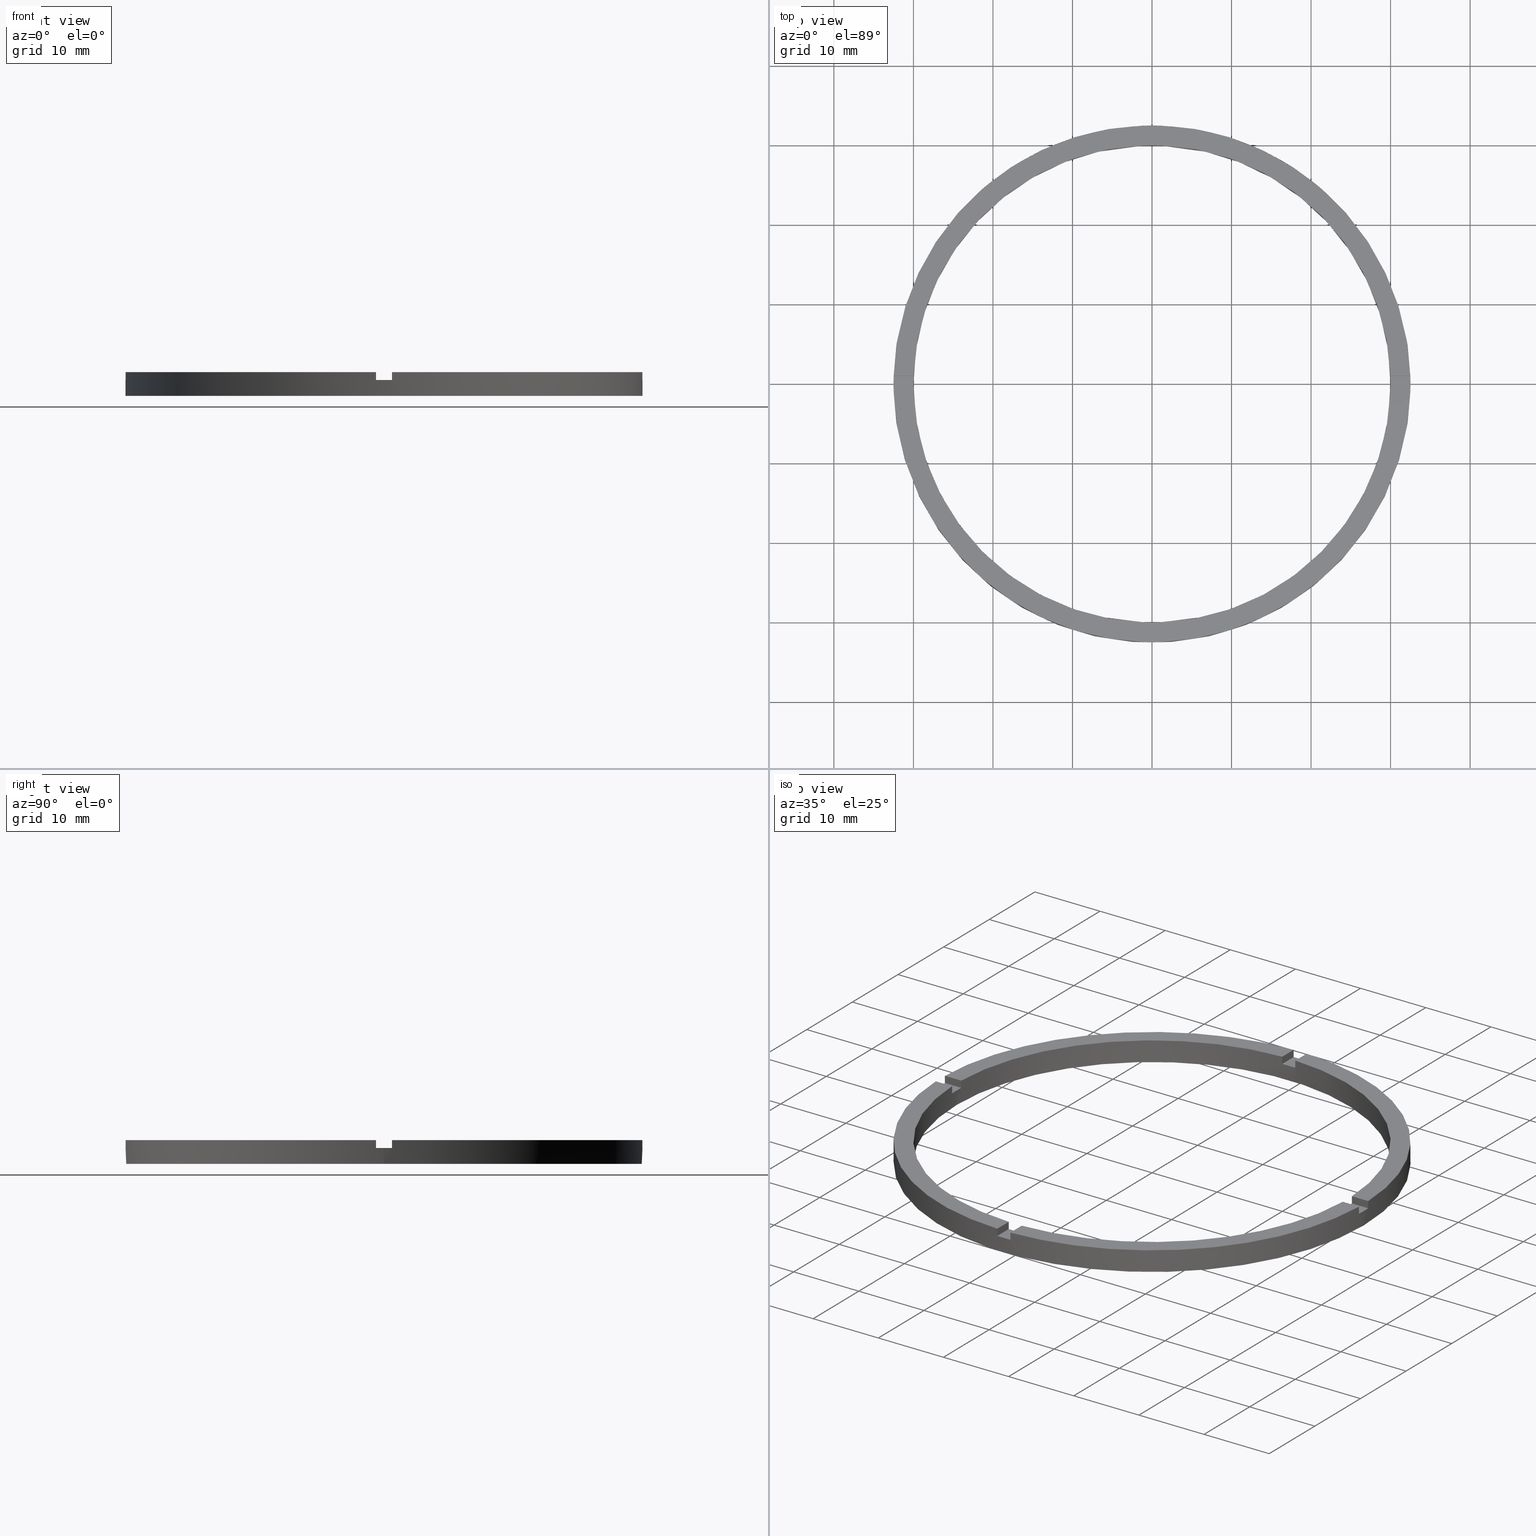
[diagram: canonical four-view strip — front | top / right | iso, engineering-drawing reading convention]
A machine part, canonical four-view strip (front | top / right | iso — engineering-drawing reading convention). The complete STEP part file that produces these views, byte-faithful:
ISO-10303-21;
HEADER;
FILE_DESCRIPTION (( 'STEP AP203' ),
    '1' );
FILE_NAME ('514134.step',
    '2024-12-26T02:40:47',
    ( 'MSI' ),
    ( '' ),
    'SwSTEP 2.0',
    'SolidWorks 2020',
    '' );
FILE_SCHEMA (( 'CONFIG_CONTROL_DESIGN' ));
ENDSEC;

DATA;
#1 = CYLINDRICAL_SURFACE ( 'NONE', #261, 32.50000000000000000 ) ;
#2 = APPROVAL ( #534, 'δָ��' ) ;
#3 = CIRCLE ( 'NONE', #516, 30.00000000000000000 ) ;
#4 = CARTESIAN_POINT ( 'NONE',  ( 0.9999999999999753530, 22.50000000000000000, 2.000000000000000000 ) ) ;
#5 = VECTOR ( 'NONE', #608, 1000.000000000000000 ) ;
#6 = LINE ( 'NONE', #214, #8 ) ;
#7 = APPLICATION_PROTOCOL_DEFINITION ( 'international standard', 'config_control_design', 1994, #714 ) ;
#8 = VECTOR ( 'NONE', #768, 1000.000000000000000 ) ;
#9 = CARTESIAN_POINT ( 'NONE',  ( 32.48461174156157938, 0.9999999999998414602, 3.000000000000000000 ) ) ;
#10 = EDGE_CURVE ( 'NONE', #573, #136, #247, .T. ) ;
#11 = AXIS2_PLACEMENT_3D ( 'NONE', #281, #398, #147 ) ;
#12 = VECTOR ( 'NONE', #582, 1000.000000000000000 ) ;
#13 = PLANE ( 'NONE',  #757 ) ;
#14 = VECTOR ( 'NONE', #225, 1000.000000000000000 ) ;
#15 = DIRECTION ( 'NONE',  ( 0.000000000000000000, 0.000000000000000000, 1.000000000000000000 ) ) ;
#16 = FACE_OUTER_BOUND ( 'NONE', #188, .T. ) ;
#17 = ORIENTED_EDGE ( 'NONE', *, *, #156, .F. ) ;
#18 = LINE ( 'NONE', #374, #316 ) ;
#19 = ORIENTED_EDGE ( 'NONE', *, *, #447, .T. ) ;
#20 = EDGE_CURVE ( 'NONE', #28, #174, #748, .T. ) ;
#21 = LINE ( 'NONE', #365, #528 ) ;
#22 = ORIENTED_EDGE ( 'NONE', *, *, #536, .F. ) ;
#23 = ORIENTED_EDGE ( 'NONE', *, *, #160, .F. ) ;
#24 = CARTESIAN_POINT ( 'NONE',  ( 0.000000000000000000, 0.000000000000000000, 2.000000000000000000 ) ) ;
#25 = LINE ( 'NONE', #517, #52 ) ;
#26 = CC_DESIGN_PERSON_AND_ORGANIZATION_ASSIGNMENT ( #29, #422, ( #594 ) ) ;
#27 = CARTESIAN_POINT ( 'NONE',  ( 0.000000000000000000, 0.000000000000000000, 3.000000000000000000 ) ) ;
#28 = VERTEX_POINT ( 'NONE', #503 ) ;
#29 = PERSON_AND_ORGANIZATION ( #102, #292 ) ;
#30 = DATE_AND_TIME ( #33, #553 ) ;
#31 = VERTEX_POINT ( 'NONE', #434 ) ;
#32 = CARTESIAN_POINT ( 'NONE',  ( 0.000000000000000000, 0.000000000000000000, 2.000000000000000000 ) ) ;
#33 = CALENDAR_DATE ( 2024, 26, 12 ) ;
#34 = VERTEX_POINT ( 'NONE', #257 ) ;
#35 = PERSON_AND_ORGANIZATION ( #102, #292 ) ;
#36 = ORIENTED_EDGE ( 'NONE', *, *, #359, .F. ) ;
#37 = LINE ( 'NONE', #634, #50 ) ;
#38 = VERTEX_POINT ( 'NONE', #614 ) ;
#39 = DIRECTION ( 'NONE',  ( -0.000000000000000000, -0.000000000000000000, -1.000000000000000000 ) ) ;
#40 = CARTESIAN_POINT ( 'NONE',  ( 32.50000000000000000, 3.980102097228898626E-15, 0.000000000000000000 ) ) ;
#41 = ORIENTED_EDGE ( 'NONE', *, *, #99, .F. ) ;
#42 = FACE_OUTER_BOUND ( 'NONE', #170, .T. ) ;
#43 = VECTOR ( 'NONE', #39, 1000.000000000000000 ) ;
#44 = VERTEX_POINT ( 'NONE', #675 ) ;
#45 = EDGE_CURVE ( 'NONE', #38, #174, #239, .T. ) ;
#46 = CIRCLE ( 'NONE', #106, 32.50000000000000000 ) ;
#47 = CARTESIAN_POINT ( 'NONE',  ( -1.000000000000024647, 22.50000000000000000, 3.000000000000000000 ) ) ;
#48 = DIRECTION ( 'NONE',  ( 0.000000000000000000, 0.000000000000000000, 1.000000000000000000 ) ) ;
#49 = CARTESIAN_POINT ( 'NONE',  ( 30.00000000000000000, 3.673940397442059178E-15, 0.000000000000000000 ) ) ;
#50 = VECTOR ( 'NONE', #579, 1000.000000000000000 ) ;
#51 = LINE ( 'NONE', #522, #43 ) ;
#52 = VECTOR ( 'NONE', #633, 1000.000000000000000 ) ;
#53 = CYLINDRICAL_SURFACE ( 'NONE', #366, 30.00000000000000000 ) ;
#54 = ORIENTED_EDGE ( 'NONE', *, *, #487, .T. ) ;
#55 = ADVANCED_FACE ( 'NONE', ( #506 ), #13, .F. ) ;
#56 = LINE ( 'NONE', #666, #324 ) ;
#57 = EDGE_LOOP ( 'NONE', ( #462, #406, #256, #481 ) ) ;
#58 = CARTESIAN_POINT ( 'NONE',  ( 0.000000000000000000, 0.000000000000000000, 3.000000000000000000 ) ) ;
#59 = DATE_AND_TIME ( #320, #561 ) ;
#60 = LINE ( 'NONE', #158, #570 ) ;
#61 = ORIENTED_EDGE ( 'NONE', *, *, #350, .T. ) ;
#62 = ORIENTED_EDGE ( 'NONE', *, *, #682, .T. ) ;
#63 = CARTESIAN_POINT ( 'NONE',  ( 0.000000000000000000, 0.000000000000000000, 0.000000000000000000 ) ) ;
#64 = EDGE_CURVE ( 'NONE', #28, #303, #762, .T. ) ;
#65 = EDGE_CURVE ( 'NONE', #573, #716, #259, .T. ) ;
#66 = DIRECTION ( 'NONE',  ( 1.000000000000000000, 0.000000000000000000, 0.000000000000000000 ) ) ;
#67 = DIRECTION ( 'NONE',  ( 1.951563910473908228E-16, -1.000000000000000000, 0.000000000000000000 ) ) ;
#68 = PERSON_AND_ORGANIZATION_ROLE ( 'creator' ) ;
#69 = DATE_AND_TIME ( #596, #75 ) ;
#70 = DATE_AND_TIME ( #339, #578 ) ;
#71 = PRODUCT_DEFINITION_FORMATION_WITH_SPECIFIED_SOURCE ( '�κ�', '', #594, .NOT_KNOWN. ) ;
#72 = DIRECTION ( 'NONE',  ( 1.000000000000000000, 0.000000000000000000, 0.000000000000000000 ) ) ;
#73 = COORDINATED_UNIVERSAL_TIME_OFFSET ( 8, 0, .AHEAD. ) ;
#74 = DIRECTION ( 'NONE',  ( 1.000000000000000000, 0.000000000000000000, 0.000000000000000000 ) ) ;
#75 = LOCAL_TIME ( 10, 40, 47.00000000000000000, #328 ) ;
#76 = AXIS2_PLACEMENT_3D ( 'NONE', #100, #333, #513 ) ;
#77 = APPROVAL_PERSON_ORGANIZATION ( #587, #577, #427 ) ;
#78 = PERSON_AND_ORGANIZATION ( #102, #292 ) ;
#79 = CARTESIAN_POINT ( 'NONE',  ( -1.000000000000162537, -22.50000000000018119, 2.000000000000000000 ) ) ;
#80 = AXIS2_PLACEMENT_3D ( 'NONE', #781, #360, #238 ) ;
#81 = PERSON_AND_ORGANIZATION ( #102, #292 ) ;
#82 = CARTESIAN_POINT ( 'NONE',  ( -1.000000000000024647, 32.48461174156157227, 3.000000000000000000 ) ) ;
#83 = VECTOR ( 'NONE', #346, 1000.000000000000000 ) ;
#84 = LINE ( 'NONE', #433, #352 ) ;
#85 = DIRECTION ( 'NONE',  ( 1.000000000000000000, 0.000000000000000000, 0.000000000000000000 ) ) ;
#86 = ADVANCED_FACE ( 'NONE', ( #772, #249 ), #178, .F. ) ;
#87 = FACE_OUTER_BOUND ( 'NONE', #57, .T. ) ;
#88 = EDGE_CURVE ( 'NONE', #456, #34, #766, .T. ) ;
#89 = FACE_OUTER_BOUND ( 'NONE', #564, .T. ) ;
#90 = VECTOR ( 'NONE', #435, 1000.000000000000000 ) ;
#91 = LINE ( 'NONE', #638, #357 ) ;
#92 = CYLINDRICAL_SURFACE ( 'NONE', #453, 32.50000000000000000 ) ;
#93 = LINE ( 'NONE', #508, #599 ) ;
#94 = CIRCLE ( 'NONE', #334, 30.00000000000000000 ) ;
#95 = CARTESIAN_POINT ( 'NONE',  ( -1.000000000000024647, 29.98332870112989568, 3.000000000000000000 ) ) ;
#96 = ADVANCED_FACE ( 'NONE', ( #255 ), #330, .F. ) ;
#97 = DIRECTION ( 'NONE',  ( -1.000000000000000000, 0.000000000000000000, 0.000000000000000000 ) ) ;
#98 = DIRECTION ( 'NONE',  ( 0.000000000000000000, 0.000000000000000000, 1.000000000000000000 ) ) ;
#99 = EDGE_CURVE ( 'NONE', #649, #697, #775, .T. ) ;
#100 = CARTESIAN_POINT ( 'NONE',  ( 0.000000000000000000, 0.000000000000000000, 3.000000000000000000 ) ) ;
#101 = CARTESIAN_POINT ( 'NONE',  ( 0.9999999999998384625, -29.98332870112990278, 2.000000000000000000 ) ) ;
#102 = PERSON ( 'δָ��', 'δָ��', 'δָ��', ('δָ��'), ('δָ��'), ('δָ��') ) ;
#103 = DIRECTION ( 'NONE',  ( 0.000000000000000000, 0.000000000000000000, 1.000000000000000000 ) ) ;
#104 = DIRECTION ( 'NONE',  ( 1.000000000000000000, 0.000000000000000000, 0.000000000000000000 ) ) ;
#105 = CARTESIAN_POINT ( 'NONE',  ( 32.48461174156157938, 0.9999999999998414602, 2.000000000000000000 ) ) ;
#106 = AXIS2_PLACEMENT_3D ( 'NONE', #153, #108, #411 ) ;
#107 = DIRECTION ( 'NONE',  ( -0.000000000000000000, -0.000000000000000000, -1.000000000000000000 ) ) ;
#108 = DIRECTION ( 'NONE',  ( -0.000000000000000000, 0.000000000000000000, 1.000000000000000000 ) ) ;
#109 = CARTESIAN_POINT ( 'NONE',  ( 30.00000000000000000, 3.673940397442059178E-15, 3.000000000000000000 ) ) ;
#110 = ADVANCED_BREP_SHAPE_REPRESENTATION ( '514134', ( #769, #409 ), #586 ) ;
#111 = CC_DESIGN_PERSON_AND_ORGANIZATION_ASSIGNMENT ( #81, #486, ( #133 ) ) ;
#112 = CARTESIAN_POINT ( 'NONE',  ( 0.000000000000000000, 0.000000000000000000, 3.000000000000000000 ) ) ;
#113 = DIRECTION ( 'NONE',  ( 6.505213034913022906E-17, -1.000000000000000000, 0.000000000000000000 ) ) ;
#114 = EDGE_CURVE ( 'NONE', #705, #479, #783, .T. ) ;
#115 = DIRECTION ( 'NONE',  ( 1.000000000000000000, 0.000000000000000000, 0.000000000000000000 ) ) ;
#116 = LINE ( 'NONE', #223, #632 ) ;
#117 = APPROVAL_STATUS ( 'not_yet_approved' ) ;
#118 = PRODUCT_DEFINITION_SHAPE ( 'NONE', 'NONE',  #389 ) ;
#119 = VECTOR ( 'NONE', #593, 1000.000000000000000 ) ;
#120 = AXIS2_PLACEMENT_3D ( 'NONE', #702, #113, #164 ) ;
#121 = CARTESIAN_POINT ( 'NONE',  ( 0.000000000000000000, 0.000000000000000000, 3.000000000000000000 ) ) ;
#122 = DIRECTION ( 'NONE',  ( 0.000000000000000000, 0.000000000000000000, 1.000000000000000000 ) ) ;
#123 = ORIENTED_EDGE ( 'NONE', *, *, #597, .F. ) ;
#124 = LINE ( 'NONE', #642, #735 ) ;
#125 = ORIENTED_EDGE ( 'NONE', *, *, #192, .T. ) ;
#126 = DIRECTION ( 'NONE',  ( 0.000000000000000000, 0.000000000000000000, 1.000000000000000000 ) ) ;
#127 = ORIENTED_EDGE ( 'NONE', *, *, #384, .F. ) ;
#128 = EDGE_CURVE ( 'NONE', #496, #229, #266, .T. ) ;
#129 = DIRECTION ( 'NONE',  ( -0.000000000000000000, -0.000000000000000000, -1.000000000000000000 ) ) ;
#130 = CARTESIAN_POINT ( 'NONE',  ( 0.000000000000000000, 0.000000000000000000, 2.000000000000000000 ) ) ;
#131 = PLANE ( 'NONE',  #519 ) ;
#132 = ADVANCED_FACE ( 'NONE', ( #260 ), #1, .T. ) ;
#133 = SECURITY_CLASSIFICATION ( '', '', #719 ) ;
#134 = DIRECTION ( 'NONE',  ( 0.000000000000000000, 0.000000000000000000, 1.000000000000000000 ) ) ;
#135 = VERTEX_POINT ( 'NONE', #167 ) ;
#136 = VERTEX_POINT ( 'NONE', #305 ) ;
#137 = CARTESIAN_POINT ( 'NONE',  ( -22.50000000000018474, 0.9999999999999759082, 3.000000000000000000 ) ) ;
#138 = ORIENTED_EDGE ( 'NONE', *, *, #682, .F. ) ;
#139 = ORIENTED_EDGE ( 'NONE', *, *, #302, .T. ) ;
#140 = AXIS2_PLACEMENT_3D ( 'NONE', #452, #684, #631 ) ;
#141 = ORIENTED_EDGE ( 'NONE', *, *, #88, .T. ) ;
#142 = CARTESIAN_POINT ( 'NONE',  ( -1.000000000000024647, 22.50000000000000000, 2.000000000000000000 ) ) ;
#143 = CARTESIAN_POINT ( 'NONE',  ( -32.50000000000000000, 0.000000000000000000, 0.000000000000000000 ) ) ;
#144 = EDGE_CURVE ( 'NONE', #234, #312, #265, .T. ) ;
#145 = EDGE_CURVE ( 'NONE', #494, #325, #3, .T. ) ;
#146 = DIRECTION ( 'NONE',  ( 0.000000000000000000, 0.000000000000000000, 1.000000000000000000 ) ) ;
#147 = DIRECTION ( 'NONE',  ( 1.000000000000000000, 0.000000000000000000, 0.000000000000000000 ) ) ;
#148 = DIRECTION ( 'NONE',  ( 0.000000000000000000, 0.000000000000000000, 1.000000000000000000 ) ) ;
#149 = AXIS2_PLACEMENT_3D ( 'NONE', #166, #625, #155 ) ;
#150 = CARTESIAN_POINT ( 'NONE',  ( 0.9999999999999753530, 29.98332870112989923, 2.000000000000000000 ) ) ;
#151 = EDGE_CURVE ( 'NONE', #31, #670, #527, .T. ) ;
#152 = CARTESIAN_POINT ( 'NONE',  ( 0.000000000000000000, 0.000000000000000000, 3.000000000000000000 ) ) ;
#153 = CARTESIAN_POINT ( 'NONE',  ( 0.000000000000000000, 0.000000000000000000, 2.000000000000000000 ) ) ;
#154 = AXIS2_PLACEMENT_3D ( 'NONE', #475, #463, #767 ) ;
#155 = DIRECTION ( 'NONE',  ( 1.000000000000000000, 0.000000000000000000, 0.000000000000000000 ) ) ;
#156 = EDGE_CURVE ( 'NONE', #179, #245, #544, .T. ) ;
#157 = ORIENTED_EDGE ( 'NONE', *, *, #384, .T. ) ;
#158 = CARTESIAN_POINT ( 'NONE',  ( 0.9999999999999753530, 22.50000000000000000, 3.000000000000000000 ) ) ;
#159 = CARTESIAN_POINT ( 'NONE',  ( 29.98332870112990278, 0.9999999999998412381, 3.000000000000000000 ) ) ;
#160 = EDGE_CURVE ( 'NONE', #456, #752, #21, .T. ) ;
#161 = DIRECTION ( 'NONE',  ( -1.301042606982605074E-16, 1.000000000000000000, -0.000000000000000000 ) ) ;
#162 = VERTEX_POINT ( 'NONE', #648 ) ;
#163 = AXIS2_PLACEMENT_3D ( 'NONE', #591, #546, #66 ) ;
#164 = DIRECTION ( 'NONE',  ( 1.000000000000000000, 6.505213034913022906E-17, 0.000000000000000000 ) ) ;
#165 = ORIENTED_EDGE ( 'NONE', *, *, #381, .F. ) ;
#166 = CARTESIAN_POINT ( 'NONE',  ( 0.000000000000000000, 0.000000000000000000, 2.000000000000000000 ) ) ;
#167 = CARTESIAN_POINT ( 'NONE',  ( -29.98332870112989568, -1.000000000000025535, 3.000000000000000000 ) ) ;
#168 = CARTESIAN_POINT ( 'NONE',  ( 0.000000000000000000, 0.000000000000000000, 0.000000000000000000 ) ) ;
#169 = CARTESIAN_POINT ( 'NONE',  ( 0.000000000000000000, 0.000000000000000000, 0.000000000000000000 ) ) ;
#170 = EDGE_LOOP ( 'NONE', ( #672, #646, #394, #724, #123, #185 ) ) ;
#171 = PLANE ( 'NONE',  #80 ) ;
#172 = DIRECTION ( 'NONE',  ( -1.000000000000000000, 0.000000000000000000, 0.000000000000000000 ) ) ;
#173 = CARTESIAN_POINT ( 'NONE',  ( -1.000000000000024647, 29.98332870112989568, 3.000000000000000000 ) ) ;
#174 = VERTEX_POINT ( 'NONE', #105 ) ;
#175 = EDGE_LOOP ( 'NONE', ( #717, #216, #407, #470 ) ) ;
#176 = DIRECTION ( 'NONE',  ( 0.000000000000000000, 0.000000000000000000, 1.000000000000000000 ) ) ;
#177 = AXIS2_PLACEMENT_3D ( 'NONE', #580, #655, #418 ) ;
#178 = PLANE ( 'NONE',  #356 ) ;
#179 = VERTEX_POINT ( 'NONE', #143 ) ;
#180 = ORIENTED_EDGE ( 'NONE', *, *, #296, .T. ) ;
#181 = ORIENTED_EDGE ( 'NONE', *, *, #745, .T. ) ;
#182 = ORIENTED_EDGE ( 'NONE', *, *, #742, .F. ) ;
#183 = DIRECTION ( 'NONE',  ( 1.000000000000000000, 0.000000000000000000, 0.000000000000000000 ) ) ;
#184 = EDGE_CURVE ( 'NONE', #752, #455, #537, .T. ) ;
#185 = ORIENTED_EDGE ( 'NONE', *, *, #581, .T. ) ;
#186 = ORIENTED_EDGE ( 'NONE', *, *, #416, .T. ) ;
#187 = DIRECTION ( 'NONE',  ( 1.000000000000000000, 0.000000000000000000, 0.000000000000000000 ) ) ;
#188 = EDGE_LOOP ( 'NONE', ( #139, #448, #193, #198 ) ) ;
#189 = ORIENTED_EDGE ( 'NONE', *, *, #652, .F. ) ;
#190 = DIRECTION ( 'NONE',  ( 0.000000000000000000, -0.000000000000000000, 1.000000000000000000 ) ) ;
#191 = ADVANCED_FACE ( 'NONE', ( #524 ), #701, .T. ) ;
#192 = EDGE_CURVE ( 'NONE', #31, #135, #6, .T. ) ;
#193 = ORIENTED_EDGE ( 'NONE', *, *, #624, .F. ) ;
#194 = ORIENTED_EDGE ( 'NONE', *, *, #192, .F. ) ;
#195 = EDGE_LOOP ( 'NONE', ( #507, #319, #665, #493, #197, #138, #395, #200, #203, #182, #667, #476 ) ) ;
#196 = AXIS2_PLACEMENT_3D ( 'NONE', #32, #98, #689 ) ;
#197 = ORIENTED_EDGE ( 'NONE', *, *, #707, .T. ) ;
#198 = ORIENTED_EDGE ( 'NONE', *, *, #20, .F. ) ;
#199 = AXIS2_PLACEMENT_3D ( 'NONE', #4, #315, #375 ) ;
#200 = ORIENTED_EDGE ( 'NONE', *, *, #487, .F. ) ;
#201 = CARTESIAN_POINT ( 'NONE',  ( -32.48461174156157227, 0.9999999999999740208, 3.000000000000000000 ) ) ;
#202 = DIRECTION ( 'NONE',  ( 1.000000000000000000, 0.000000000000000000, 0.000000000000000000 ) ) ;
#203 = ORIENTED_EDGE ( 'NONE', *, *, #151, .T. ) ;
#204 = ORIENTED_EDGE ( 'NONE', *, *, #160, .T. ) ;
#205 = ORIENTED_EDGE ( 'NONE', *, *, #64, .T. ) ;
#206 = DIRECTION ( 'NONE',  ( 1.000000000000000000, 0.000000000000000000, -0.000000000000000000 ) ) ;
#207 = VERTEX_POINT ( 'NONE', #405 ) ;
#208 = ORIENTED_EDGE ( 'NONE', *, *, #373, .F. ) ;
#209 = EDGE_CURVE ( 'NONE', #245, #179, #268, .T. ) ;
#210 = ORIENTED_EDGE ( 'NONE', *, *, #512, .F. ) ;
#211 = ORIENTED_EDGE ( 'NONE', *, *, #184, .T. ) ;
#212 = ORIENTED_EDGE ( 'NONE', *, *, #615, .F. ) ;
#213 = CARTESIAN_POINT ( 'NONE',  ( 29.98332870112989212, -1.000000000000158762, 3.000000000000000000 ) ) ;
#214 = CARTESIAN_POINT ( 'NONE',  ( -22.50000000000018474, -1.000000000000023981, 3.000000000000000000 ) ) ;
#215 = PLANE ( 'NONE',  #306 ) ;
#216 = ORIENTED_EDGE ( 'NONE', *, *, #676, .T. ) ;
#217 = DIRECTION ( 'NONE',  ( -0.000000000000000000, -0.000000000000000000, -1.000000000000000000 ) ) ;
#218 = ORIENTED_EDGE ( 'NONE', *, *, #381, .T. ) ;
#219 = LINE ( 'NONE', #471, #491 ) ;
#220 = ORIENTED_EDGE ( 'NONE', *, *, #221, .F. ) ;
#221 = EDGE_CURVE ( 'NONE', #572, #227, #532, .T. ) ;
#222 = CARTESIAN_POINT ( 'NONE',  ( 0.000000000000000000, 0.000000000000000000, 3.000000000000000000 ) ) ;
#223 = CARTESIAN_POINT ( 'NONE',  ( -22.50000000000018474, 0.9999999999999759082, 2.000000000000000000 ) ) ;
#224 = EDGE_CURVE ( 'NONE', #44, #649, #116, .T. ) ;
#225 = DIRECTION ( 'NONE',  ( -1.301042606982605074E-16, 1.000000000000000000, -0.000000000000000000 ) ) ;
#226 = VECTOR ( 'NONE', #778, 1000.000000000000000 ) ;
#227 = VERTEX_POINT ( 'NONE', #49 ) ;
#228 = ORIENTED_EDGE ( 'NONE', *, *, #438, .F. ) ;
#229 = VERTEX_POINT ( 'NONE', #399 ) ;
#230 = AXIS2_PLACEMENT_3D ( 'NONE', #429, #613, #721 ) ;
#231 = DIRECTION ( 'NONE',  ( -0.000000000000000000, -0.000000000000000000, -1.000000000000000000 ) ) ;
#232 = ORIENTED_EDGE ( 'NONE', *, *, #45, .F. ) ;
#233 = DIRECTION ( 'NONE',  ( 0.000000000000000000, 0.000000000000000000, 1.000000000000000000 ) ) ;
#234 = VERTEX_POINT ( 'NONE', #523 ) ;
#235 = EDGE_CURVE ( 'NONE', #314, #162, #636, .T. ) ;
#236 = MECHANICAL_CONTEXT ( 'NONE', #714, 'mechanical' ) ;
#237 = ORIENTED_EDGE ( 'NONE', *, *, #221, .T. ) ;
#238 = DIRECTION ( 'NONE',  ( 1.000000000000000000, 0.000000000000000000, -0.000000000000000000 ) ) ;
#239 = CIRCLE ( 'NONE', #321, 32.50000000000000000 ) ;
#240 = DIRECTION ( 'NONE',  ( 0.000000000000000000, 0.000000000000000000, 1.000000000000000000 ) ) ;
#241 = AXIS2_PLACEMENT_3D ( 'NONE', #518, #693, #451 ) ;
#242 = ORIENTED_EDGE ( 'NONE', *, *, #20, .T. ) ;
#243 = CIRCLE ( 'NONE', #529, 32.50000000000000000 ) ;
#244 = APPLICATION_PROTOCOL_DEFINITION ( 'international standard', 'config_control_design', 1994, #780 ) ;
#245 = VERTEX_POINT ( 'NONE', #40 ) ;
#246 = LINE ( 'NONE', #776, #763 ) ;
#247 = CIRCLE ( 'NONE', #687, 30.00000000000000000 ) ;
#248 = CARTESIAN_POINT ( 'NONE',  ( 0.9999999999999753530, 29.98332870112989923, 3.000000000000000000 ) ) ;
#249 = FACE_BOUND ( 'NONE', #651, .T. ) ;
#250 = APPROVAL_STATUS ( 'not_yet_approved' ) ;
#251 = CC_DESIGN_DATE_AND_TIME_ASSIGNMENT ( #59, #669, ( #389 ) ) ;
#252 = DIRECTION ( 'NONE',  ( 1.000000000000000000, 0.000000000000000000, 0.000000000000000000 ) ) ;
#253 = EDGE_CURVE ( 'NONE', #314, #480, #390, .T. ) ;
#254 = DIRECTION ( 'NONE',  ( 1.000000000000000000, 0.000000000000000000, 0.000000000000000000 ) ) ;
#255 = FACE_OUTER_BOUND ( 'NONE', #747, .T. ) ;
#256 = ORIENTED_EDGE ( 'NONE', *, *, #765, .F. ) ;
#257 = CARTESIAN_POINT ( 'NONE',  ( -1.000000000000161426, -32.48461174156157227, 2.000000000000000000 ) ) ;
#258 = VECTOR ( 'NONE', #743, 1000.000000000000000 ) ;
#259 = LINE ( 'NONE', #173, #226 ) ;
#260 = FACE_OUTER_BOUND ( 'NONE', #195, .T. ) ;
#261 = AXIS2_PLACEMENT_3D ( 'NONE', #121, #231, #172 ) ;
#262 = DIRECTION ( 'NONE',  ( 1.301042606982605074E-16, -1.000000000000000000, 0.000000000000000000 ) ) ;
#263 = VECTOR ( 'NONE', #618, 1000.000000000000000 ) ;
#264 = UNCERTAINTY_MEASURE_WITH_UNIT (LENGTH_MEASURE( 1.000000000000000082E-05 ), #297, 'distance_accuracy_value', 'NONE');
#265 = CIRCLE ( 'NONE', #589, 30.00000000000000000 ) ;
#266 = LINE ( 'NONE', #559, #263 ) ;
#267 = CARTESIAN_POINT ( 'NONE',  ( -30.00000000000000000, 0.000000000000000000, 2.000000000000000000 ) ) ;
#268 = CIRCLE ( 'NONE', #678, 32.50000000000000000 ) ;
#269 = EDGE_CURVE ( 'NONE', #44, #494, #385, .T. ) ;
#270 = PLANE ( 'NONE',  #241 ) ;
#271 = DIRECTION ( 'NONE',  ( -0.000000000000000000, -0.000000000000000000, -1.000000000000000000 ) ) ;
#272 = ADVANCED_FACE ( 'NONE', ( #387 ), #531, .T. ) ;
#273 = LINE ( 'NONE', #47, #12 ) ;
#274 = PLANE ( 'NONE',  #482 ) ;
#275 = DIRECTION ( 'NONE',  ( 0.000000000000000000, 0.000000000000000000, 1.000000000000000000 ) ) ;
#276 = AXIS2_PLACEMENT_3D ( 'NONE', #592, #48, #104 ) ;
#277 = CYLINDRICAL_SURFACE ( 'NONE', #525, 30.00000000000000000 ) ;
#278 = ORIENTED_EDGE ( 'NONE', *, *, #144, .T. ) ;
#279 = CARTESIAN_POINT ( 'NONE',  ( -32.50000000000000000, 0.000000000000000000, 3.000000000000000000 ) ) ;
#280 = CARTESIAN_POINT ( 'NONE',  ( 22.49999999999999645, -1.000000000000159206, 3.000000000000000000 ) ) ;
#281 = CARTESIAN_POINT ( 'NONE',  ( 0.000000000000000000, 0.000000000000000000, 2.000000000000000000 ) ) ;
#282 = VERTEX_POINT ( 'NONE', #635 ) ;
#283 = CARTESIAN_POINT ( 'NONE',  ( -1.000000000000162537, -22.50000000000018119, 2.000000000000000000 ) ) ;
#284 = LINE ( 'NONE', #280, #557 ) ;
#285 = ORIENTED_EDGE ( 'NONE', *, *, #329, .F. ) ;
#286 = EDGE_LOOP ( 'NONE', ( #754, #228, #194, #54 ) ) ;
#287 = FACE_OUTER_BOUND ( 'NONE', #425, .T. ) ;
#288 = ORIENTED_EDGE ( 'NONE', *, *, #114, .F. ) ;
#289 = ORIENTED_EDGE ( 'NONE', *, *, #619, .T. ) ;
#290 = APPROVAL_PERSON_ORGANIZATION ( #35, #2, #495 ) ;
#291 = PERSON_AND_ORGANIZATION ( #102, #292 ) ;
#292 = ORGANIZATION ( 'δָ��', 'δָ��', '' ) ;
#293 = DIRECTION ( 'NONE',  ( 0.000000000000000000, 0.000000000000000000, 1.000000000000000000 ) ) ;
#294 = VECTOR ( 'NONE', #640, 1000.000000000000000 ) ;
#295 = ORIENTED_EDGE ( 'NONE', *, *, #253, .F. ) ;
#296 = EDGE_CURVE ( 'NONE', #326, #312, #124, .T. ) ;
#297 =( LENGTH_UNIT ( ) NAMED_UNIT ( * ) SI_UNIT ( .MILLI., .METRE. ) );
#298 = COORDINATED_UNIVERSAL_TIME_OFFSET ( 8, 0, .AHEAD. ) ;
#299 = ORIENTED_EDGE ( 'NONE', *, *, #253, .T. ) ;
#300 = ORIENTED_EDGE ( 'NONE', *, *, #114, .T. ) ;
#301 = COORDINATED_UNIVERSAL_TIME_OFFSET ( 8, 0, .AHEAD. ) ;
#302 = EDGE_CURVE ( 'NONE', #28, #314, #492, .T. ) ;
#303 = VERTEX_POINT ( 'NONE', #472 ) ;
#304 = DIRECTION ( 'NONE',  ( -0.000000000000000000, -0.000000000000000000, -1.000000000000000000 ) ) ;
#305 = CARTESIAN_POINT ( 'NONE',  ( -29.98332870112989923, 0.9999999999999744649, 3.000000000000000000 ) ) ;
#306 = AXIS2_PLACEMENT_3D ( 'NONE', #283, #730, #262 ) ;
#307 = ORIENTED_EDGE ( 'NONE', *, *, #416, .F. ) ;
#308 = CIRCLE ( 'NONE', #423, 32.50000000000000000 ) ;
#309 = ORIENTED_EDGE ( 'NONE', *, *, #65, .F. ) ;
#310 = PERSON_AND_ORGANIZATION_ROLE ( 'design_supplier' ) ;
#311 = LINE ( 'NONE', #457, #294 ) ;
#312 = VERTEX_POINT ( 'NONE', #213 ) ;
#313 = FACE_OUTER_BOUND ( 'NONE', #412, .T. ) ;
#314 = VERTEX_POINT ( 'NONE', #658 ) ;
#315 = DIRECTION ( 'NONE',  ( 1.000000000000000000, -0.000000000000000000, 0.000000000000000000 ) ) ;
#316 = VECTOR ( 'NONE', #161, 1000.000000000000000 ) ;
#317 = DIRECTION ( 'NONE',  ( 1.000000000000000000, 0.000000000000000000, 0.000000000000000000 ) ) ;
#318 = DIRECTION ( 'NONE',  ( 1.000000000000000000, 0.000000000000000000, -0.000000000000000000 ) ) ;
#319 = ORIENTED_EDGE ( 'NONE', *, *, #715, .F. ) ;
#320 = CALENDAR_DATE ( 2024, 26, 12 ) ;
#321 = AXIS2_PLACEMENT_3D ( 'NONE', #380, #706, #115 ) ;
#322 = VECTOR ( 'NONE', #647, 1000.000000000000000 ) ;
#323 = ORIENTED_EDGE ( 'NONE', *, *, #474, .F. ) ;
#324 = VECTOR ( 'NONE', #217, 1000.000000000000000 ) ;
#325 = VERTEX_POINT ( 'NONE', #758 ) ;
#326 = VERTEX_POINT ( 'NONE', #410 ) ;
#327 = CARTESIAN_POINT ( 'NONE',  ( 0.000000000000000000, 0.000000000000000000, 0.000000000000000000 ) ) ;
#328 = COORDINATED_UNIVERSAL_TIME_OFFSET ( 8, 0, .AHEAD. ) ;
#329 = EDGE_CURVE ( 'NONE', #670, #325, #219, .T. ) ;
#330 = PLANE ( 'NONE',  #547 ) ;
#331 = CARTESIAN_POINT ( 'NONE',  ( 0.9999999999999753530, 32.48461174156157227, 3.000000000000000000 ) ) ;
#332 = CC_DESIGN_APPROVAL ( #2, ( #389 ) ) ;
#333 = DIRECTION ( 'NONE',  ( 0.000000000000000000, 0.000000000000000000, 1.000000000000000000 ) ) ;
#334 = AXIS2_PLACEMENT_3D ( 'NONE', #627, #15, #254 ) ;
#335 = ADVANCED_FACE ( 'NONE', ( #733 ), #53, .F. ) ;
#336 = PERSON_AND_ORGANIZATION ( #102, #292 ) ;
#337 = SHAPE_DEFINITION_REPRESENTATION ( #118, #110 ) ;
#338 = PLANE ( 'NONE',  #567 ) ;
#339 = CALENDAR_DATE ( 2024, 26, 12 ) ;
#340 = CALENDAR_DATE ( 2024, 26, 12 ) ;
#341 = APPROVAL_DATE_TIME ( #70, #577 ) ;
#342 = APPROVAL_DATE_TIME ( #69, #468 ) ;
#343 = DIRECTION ( 'NONE',  ( 0.000000000000000000, 0.000000000000000000, 1.000000000000000000 ) ) ;
#344 = PERSON_AND_ORGANIZATION ( #102, #292 ) ;
#345 = DATE_AND_TIME ( #340, #585 ) ;
#346 = DIRECTION ( 'NONE',  ( -0.000000000000000000, -1.000000000000000000, -0.000000000000000000 ) ) ;
#347 = CARTESIAN_POINT ( 'NONE',  ( 0.9999999999999753530, 32.48461174156157227, 2.000000000000000000 ) ) ;
#348 = CIRCLE ( 'NONE', #460, 30.00000000000000000 ) ;
#349 = CIRCLE ( 'NONE', #773, 32.50000000000000000 ) ;
#350 = EDGE_CURVE ( 'NONE', #480, #303, #60, .T. ) ;
#351 = LINE ( 'NONE', #82, #600 ) ;
#352 = VECTOR ( 'NONE', #498, 1000.000000000000000 ) ;
#353 = CARTESIAN_POINT ( 'NONE',  ( -22.50000000000018474, 0.9999999999999759082, 2.000000000000000000 ) ) ;
#354 = EDGE_CURVE ( 'NONE', #483, #179, #571, .T. ) ;
#355 = LINE ( 'NONE', #501, #606 ) ;
#356 = AXIS2_PLACEMENT_3D ( 'NONE', #168, #240, #318 ) ;
#357 = VECTOR ( 'NONE', #304, 1000.000000000000000 ) ;
#358 = FACE_OUTER_BOUND ( 'NONE', #644, .T. ) ;
#359 = EDGE_CURVE ( 'NONE', #135, #325, #56, .T. ) ;
#360 = DIRECTION ( 'NONE',  ( 0.000000000000000000, 0.000000000000000000, 1.000000000000000000 ) ) ;
#361 = CARTESIAN_POINT ( 'NONE',  ( 0.9999999999999753530, 29.98332870112989923, 3.000000000000000000 ) ) ;
#362 = CARTESIAN_POINT ( 'NONE',  ( 0.000000000000000000, 0.000000000000000000, 3.000000000000000000 ) ) ;
#363 = CIRCLE ( 'NONE', #388, 30.00000000000000000 ) ;
#364 = ADVANCED_FACE ( 'NONE', ( #756 ), #171, .T. ) ;
#365 = CARTESIAN_POINT ( 'NONE',  ( -1.000000000000161648, -29.98332870112989212, 3.000000000000000000 ) ) ;
#366 = AXIS2_PLACEMENT_3D ( 'NONE', #222, #107, #530 ) ;
#367 = DIRECTION ( 'NONE',  ( 1.000000000000000000, 1.951563910473908228E-16, -0.000000000000000000 ) ) ;
#368 = CC_DESIGN_PERSON_AND_ORGANIZATION_ASSIGNMENT ( #291, #68, ( #389 ) ) ;
#369 = DIRECTION ( 'NONE',  ( -1.000000000000000000, -1.951563910473908228E-16, 0.000000000000000000 ) ) ;
#370 = PLANE ( 'NONE',  #230 ) ;
#371 = CARTESIAN_POINT ( 'NONE',  ( 0.000000000000000000, 0.000000000000000000, 3.000000000000000000 ) ) ;
#372 = DIRECTION ( 'NONE',  ( 0.000000000000000000, 0.000000000000000000, 1.000000000000000000 ) ) ;
#373 = EDGE_CURVE ( 'NONE', #207, #697, #243, .T. ) ;
#374 = CARTESIAN_POINT ( 'NONE',  ( 0.9999999999998375744, -22.50000000000018119, 2.000000000000000000 ) ) ;
#375 = DIRECTION ( 'NONE',  ( 0.000000000000000000, 0.000000000000000000, -1.000000000000000000 ) ) ;
#376 = DIRECTION ( 'NONE',  ( 1.000000000000000000, 0.000000000000000000, 0.000000000000000000 ) ) ;
#377 = DIRECTION ( 'NONE',  ( 1.301042606982605074E-16, -1.000000000000000000, 0.000000000000000000 ) ) ;
#378 = DATE_TIME_ROLE ( 'classification_date' ) ;
#379 = CARTESIAN_POINT ( 'NONE',  ( -32.50000000000000000, 0.000000000000000000, 2.000000000000000000 ) ) ;
#380 = CARTESIAN_POINT ( 'NONE',  ( 0.000000000000000000, 0.000000000000000000, 2.000000000000000000 ) ) ;
#381 = EDGE_CURVE ( 'NONE', #494, #396, #246, .T. ) ;
#382 = DIRECTION ( 'NONE',  ( 1.000000000000000000, 6.505213034913022906E-17, 0.000000000000000000 ) ) ;
#383 = DIRECTION ( 'NONE',  ( -1.000000000000000000, 0.000000000000000000, 0.000000000000000000 ) ) ;
#384 = EDGE_CURVE ( 'NONE', #456, #722, #510, .T. ) ;
#385 = CIRCLE ( 'NONE', #177, 30.00000000000000000 ) ;
#386 = DESIGN_CONTEXT ( 'detailed design', #780, 'design' ) ;
#387 = FACE_OUTER_BOUND ( 'NONE', #668, .T. ) ;
#388 = AXIS2_PLACEMENT_3D ( 'NONE', #575, #621, #677 ) ;
#389 = PRODUCT_DEFINITION ( 'δ֪', '', #71, #386 ) ;
#390 = CIRCLE ( 'NONE', #140, 30.00000000000000000 ) ;
#391 = ORIENTED_EDGE ( 'NONE', *, *, #224, .T. ) ;
#392 = ORIENTED_EDGE ( 'NONE', *, *, #359, .T. ) ;
#393 = ORIENTED_EDGE ( 'NONE', *, *, #235, .F. ) ;
#394 = ORIENTED_EDGE ( 'NONE', *, *, #624, .T. ) ;
#395 = ORIENTED_EDGE ( 'NONE', *, *, #626, .T. ) ;
#396 = VERTEX_POINT ( 'NONE', #601 ) ;
#397 = DIRECTION ( 'NONE',  ( 0.000000000000000000, 0.000000000000000000, 1.000000000000000000 ) ) ;
#398 = DIRECTION ( 'NONE',  ( 0.000000000000000000, 0.000000000000000000, 1.000000000000000000 ) ) ;
#399 = CARTESIAN_POINT ( 'NONE',  ( 32.48461174156157227, -1.000000000000158540, 3.000000000000000000 ) ) ;
#400 = ORIENTED_EDGE ( 'NONE', *, *, #373, .T. ) ;
#401 = ADVANCED_FACE ( 'NONE', ( #770 ), #538, .F. ) ;
#402 = ORIENTED_EDGE ( 'NONE', *, *, #556, .T. ) ;
#403 = DIRECTION ( 'NONE',  ( -0.000000000000000000, -0.000000000000000000, -1.000000000000000000 ) ) ;
#404 = DIRECTION ( 'NONE',  ( -1.951563910473908228E-16, 1.000000000000000000, 0.000000000000000000 ) ) ;
#405 = CARTESIAN_POINT ( 'NONE',  ( -1.000000000000024647, 32.48461174156157227, 3.000000000000000000 ) ) ;
#406 = ORIENTED_EDGE ( 'NONE', *, *, #144, .F. ) ;
#407 = ORIENTED_EDGE ( 'NONE', *, *, #745, .F. ) ;
#408 = ORIENTED_EDGE ( 'NONE', *, *, #484, .F. ) ;
#409 = AXIS2_PLACEMENT_3D ( 'NONE', #169, #126, #663 ) ;
#410 = CARTESIAN_POINT ( 'NONE',  ( 29.98332870112989212, -1.000000000000158762, 2.000000000000000000 ) ) ;
#411 = DIRECTION ( 'NONE',  ( 1.000000000000000000, 0.000000000000000000, 0.000000000000000000 ) ) ;
#412 = EDGE_LOOP ( 'NONE', ( #62, #181, #127, #141 ) ) ;
#413 = DIRECTION ( 'NONE',  ( -1.000000000000000000, -6.505213034913022906E-17, -0.000000000000000000 ) ) ;
#414 = ORIENTED_EDGE ( 'NONE', *, *, #581, .F. ) ;
#415 = PLANE ( 'NONE',  #120 ) ;
#416 = EDGE_CURVE ( 'NONE', #729, #716, #511, .T. ) ;
#417 = DIRECTION ( 'NONE',  ( -0.000000000000000000, -0.000000000000000000, -1.000000000000000000 ) ) ;
#418 = DIRECTION ( 'NONE',  ( 1.000000000000000000, 0.000000000000000000, 0.000000000000000000 ) ) ;
#419 = CARTESIAN_POINT ( 'NONE',  ( -1.000000000000161426, -32.48461174156157227, 3.000000000000000000 ) ) ;
#420 = CARTESIAN_POINT ( 'NONE',  ( 0.000000000000000000, 0.000000000000000000, 2.000000000000000000 ) ) ;
#421 = CARTESIAN_POINT ( 'NONE',  ( 0.000000000000000000, 0.000000000000000000, 3.000000000000000000 ) ) ;
#422 = PERSON_AND_ORGANIZATION_ROLE ( 'design_owner' ) ;
#423 = AXIS2_PLACEMENT_3D ( 'NONE', #362, #465, #630 ) ;
#424 = ORIENTED_EDGE ( 'NONE', *, *, #597, .T. ) ;
#425 = EDGE_LOOP ( 'NONE', ( #424, #237, #323, #165, #502, #36, #504, #23, #157, #699, #278, #685 ) ) ;
#426 = CARTESIAN_POINT ( 'NONE',  ( 0.000000000000000000, 0.000000000000000000, 2.000000000000000000 ) ) ;
#427 = APPROVAL_ROLE ( '' ) ;
#428 = CC_DESIGN_SECURITY_CLASSIFICATION ( #133, ( #71 ) ) ;
#429 = CARTESIAN_POINT ( 'NONE',  ( 0.000000000000000000, 0.000000000000000000, 3.000000000000000000 ) ) ;
#430 = CARTESIAN_POINT ( 'NONE',  ( -22.50000000000018474, -1.000000000000023981, 2.000000000000000000 ) ) ;
#431 = PERSON_AND_ORGANIZATION_ROLE ( 'creator' ) ;
#432 = DIRECTION ( 'NONE',  ( -0.000000000000000000, -0.000000000000000000, -1.000000000000000000 ) ) ;
#433 = CARTESIAN_POINT ( 'NONE',  ( -29.98332870112989923, 0.9999999999999744649, 3.000000000000000000 ) ) ;
#434 = CARTESIAN_POINT ( 'NONE',  ( -32.48461174156157227, -1.000000000000025979, 3.000000000000000000 ) ) ;
#435 = DIRECTION ( 'NONE',  ( -1.000000000000000000, -1.951563910473908228E-16, 0.000000000000000000 ) ) ;
#436 = PLANE ( 'NONE',  #149 ) ;
#437 = ORIENTED_EDGE ( 'NONE', *, *, #209, .T. ) ;
#438 = EDGE_CURVE ( 'NONE', #135, #752, #611, .T. ) ;
#439 = ORIENTED_EDGE ( 'NONE', *, *, #723, .F. ) ;
#440 = CARTESIAN_POINT ( 'NONE',  ( 0.000000000000000000, 0.000000000000000000, 2.000000000000000000 ) ) ;
#441 = EDGE_LOOP ( 'NONE', ( #189, #400, #212, #720 ) ) ;
#442 = EDGE_LOOP ( 'NONE', ( #643, #568, #61, #210 ) ) ;
#443 = AXIS2_PLACEMENT_3D ( 'NONE', #421, #122, #554 ) ;
#444 = ORIENTED_EDGE ( 'NONE', *, *, #662, .T. ) ;
#445 = DIRECTION ( 'NONE',  ( 1.000000000000000000, 0.000000000000000000, -0.000000000000000000 ) ) ;
#446 = ORIENTED_EDGE ( 'NONE', *, *, #10, .T. ) ;
#447 = EDGE_CURVE ( 'NONE', #38, #245, #91, .T. ) ;
#448 = ORIENTED_EDGE ( 'NONE', *, *, #235, .T. ) ;
#449 = ORIENTED_EDGE ( 'NONE', *, *, #65, .T. ) ;
#450 = DIRECTION ( 'NONE',  ( 0.000000000000000000, 0.000000000000000000, 1.000000000000000000 ) ) ;
#451 = DIRECTION ( 'NONE',  ( -1.301042606982605074E-16, 1.000000000000000000, 0.000000000000000000 ) ) ;
#452 = CARTESIAN_POINT ( 'NONE',  ( 0.000000000000000000, 0.000000000000000000, 3.000000000000000000 ) ) ;
#453 = AXIS2_PLACEMENT_3D ( 'NONE', #737, #432, #97 ) ;
#454 = CC_DESIGN_PERSON_AND_ORGANIZATION_ASSIGNMENT ( #344, #431, ( #71 ) ) ;
#455 = VERTEX_POINT ( 'NONE', #419 ) ;
#456 = VERTEX_POINT ( 'NONE', #612 ) ;
#457 = CARTESIAN_POINT ( 'NONE',  ( 22.49999999999999645, 0.9999999999998409050, 2.000000000000000000 ) ) ;
#458 = DIRECTION ( 'NONE',  ( -1.000000000000000000, -1.951563910473908228E-16, 0.000000000000000000 ) ) ;
#459 = DIRECTION ( 'NONE',  ( 0.000000000000000000, 0.000000000000000000, 1.000000000000000000 ) ) ;
#460 = AXIS2_PLACEMENT_3D ( 'NONE', #440, #450, #187 ) ;
#461 = ORIENTED_EDGE ( 'NONE', *, *, #615, .T. ) ;
#462 = ORIENTED_EDGE ( 'NONE', *, *, #662, .F. ) ;
#463 = DIRECTION ( 'NONE',  ( -0.000000000000000000, 0.000000000000000000, 1.000000000000000000 ) ) ;
#464 = DIRECTION ( 'NONE',  ( 1.000000000000000000, 6.505213034913022906E-17, 0.000000000000000000 ) ) ;
#465 = DIRECTION ( 'NONE',  ( 0.000000000000000000, 0.000000000000000000, 1.000000000000000000 ) ) ;
#466 = ADVANCED_FACE ( 'NONE', ( #87 ), #370, .T. ) ;
#467 = CLOSED_SHELL ( 'NONE', ( #637, #499, #515, #617, #466, #191, #86, #132, #335, #96, #726, #364, #695, #741, #728, #620, #753, #692, #55, #401, #272 ) ) ;
#468 = APPROVAL ( #117, 'δָ��' ) ;
#469 = ORIENTED_EDGE ( 'NONE', *, *, #742, .T. ) ;
#470 = ORIENTED_EDGE ( 'NONE', *, *, #707, .F. ) ;
#471 = CARTESIAN_POINT ( 'NONE',  ( -22.50000000000018474, -1.000000000000023981, 2.000000000000000000 ) ) ;
#472 = CARTESIAN_POINT ( 'NONE',  ( 0.9999999999999753530, 32.48461174156157227, 3.000000000000000000 ) ) ;
#473 = AXIS2_PLACEMENT_3D ( 'NONE', #130, #190, #183 ) ;
#474 = EDGE_CURVE ( 'NONE', #396, #227, #610, .T. ) ;
#475 = CARTESIAN_POINT ( 'NONE',  ( 0.000000000000000000, 0.000000000000000000, 2.000000000000000000 ) ) ;
#476 = ORIENTED_EDGE ( 'NONE', *, *, #156, .T. ) ;
#477 =( NAMED_UNIT ( * ) PLANE_ANGLE_UNIT ( ) SI_UNIT ( $, .RADIAN. ) );
#478 = EDGE_CURVE ( 'NONE', #44, #136, #84, .T. ) ;
#479 = VERTEX_POINT ( 'NONE', #558 ) ;
#480 = VERTEX_POINT ( 'NONE', #248 ) ;
#481 = ORIENTED_EDGE ( 'NONE', *, *, #680, .T. ) ;
#482 = AXIS2_PLACEMENT_3D ( 'NONE', #353, #404, #458 ) ;
#483 = VERTEX_POINT ( 'NONE', #379 ) ;
#484 = EDGE_CURVE ( 'NONE', #207, #479, #351, .T. ) ;
#485 = DIRECTION ( 'NONE',  ( 0.000000000000000000, 0.000000000000000000, 1.000000000000000000 ) ) ;
#486 = PERSON_AND_ORGANIZATION_ROLE ( 'classification_officer' ) ;
#487 = EDGE_CURVE ( 'NONE', #31, #455, #349, .T. ) ;
#488 = DIRECTION ( 'NONE',  ( 1.000000000000000000, 0.000000000000000000, 0.000000000000000000 ) ) ;
#489 = DIRECTION ( 'NONE',  ( -0.000000000000000000, -0.000000000000000000, -1.000000000000000000 ) ) ;
#490 = APPROVAL_ROLE ( '' ) ;
#491 = VECTOR ( 'NONE', #367, 1000.000000000000000 ) ;
#492 = LINE ( 'NONE', #760, #731 ) ;
#493 = ORIENTED_EDGE ( 'NONE', *, *, #680, .F. ) ;
#494 = VERTEX_POINT ( 'NONE', #267 ) ;
#495 = APPROVAL_ROLE ( '' ) ;
#496 = VERTEX_POINT ( 'NONE', #629 ) ;
#497 = PRODUCT_RELATED_PRODUCT_CATEGORY ( 'detail', '', ( #594 ) ) ;
#498 = DIRECTION ( 'NONE',  ( 0.000000000000000000, 0.000000000000000000, 1.000000000000000000 ) ) ;
#499 = ADVANCED_FACE ( 'NONE', ( #358 ), #92, .T. ) ;
#500 = ORIENTED_EDGE ( 'NONE', *, *, #302, .F. ) ;
#501 = CARTESIAN_POINT ( 'NONE',  ( 0.9999999999999753530, 22.50000000000000000, 2.000000000000000000 ) ) ;
#502 = ORIENTED_EDGE ( 'NONE', *, *, #145, .T. ) ;
#503 = CARTESIAN_POINT ( 'NONE',  ( 32.48461174156157938, 0.9999999999998414602, 3.000000000000000000 ) ) ;
#504 = ORIENTED_EDGE ( 'NONE', *, *, #438, .T. ) ;
#505 = CARTESIAN_POINT ( 'NONE',  ( 22.49999999999999645, 0.9999999999998409050, 2.000000000000000000 ) ) ;
#506 = FACE_OUTER_BOUND ( 'NONE', #739, .T. ) ;
#507 = ORIENTED_EDGE ( 'NONE', *, *, #447, .F. ) ;
#508 = CARTESIAN_POINT ( 'NONE',  ( 22.49999999999999645, -1.000000000000159206, 2.000000000000000000 ) ) ;
#509 = DIRECTION ( 'NONE',  ( 0.000000000000000000, 0.000000000000000000, 1.000000000000000000 ) ) ;
#510 = CIRCLE ( 'NONE', #154, 30.00000000000000000 ) ;
#511 = CIRCLE ( 'NONE', #671, 30.00000000000000000 ) ;
#512 = EDGE_CURVE ( 'NONE', #705, #303, #609, .T. ) ;
#513 = DIRECTION ( 'NONE',  ( 1.000000000000000000, 0.000000000000000000, -0.000000000000000000 ) ) ;
#514 = DIRECTION ( 'NONE',  ( 1.000000000000000000, 0.000000000000000000, -0.000000000000000000 ) ) ;
#515 = ADVANCED_FACE ( 'NONE', ( #603 ), #131, .T. ) ;
#516 = AXIS2_PLACEMENT_3D ( 'NONE', #420, #485, #376 ) ;
#517 = CARTESIAN_POINT ( 'NONE',  ( -1.000000000000161426, -32.48461174156157227, 3.000000000000000000 ) ) ;
#518 = CARTESIAN_POINT ( 'NONE',  ( 0.9999999999998375744, -22.50000000000018119, 2.000000000000000000 ) ) ;
#519 = AXIS2_PLACEMENT_3D ( 'NONE', #616, #397, #445 ) ;
#520 = CC_DESIGN_APPROVAL ( #577, ( #133 ) ) ;
#521 = DIRECTION ( 'NONE',  ( 0.000000000000000000, -0.000000000000000000, 1.000000000000000000 ) ) ;
#522 = CARTESIAN_POINT ( 'NONE',  ( 0.9999999999998386846, -32.48461174156157938, 3.000000000000000000 ) ) ;
#523 = CARTESIAN_POINT ( 'NONE',  ( 0.9999999999998384625, -29.98332870112990278, 3.000000000000000000 ) ) ;
#524 = FACE_OUTER_BOUND ( 'NONE', #286, .T. ) ;
#525 = AXIS2_PLACEMENT_3D ( 'NONE', #152, #403, #688 ) ;
#526 = VECTOR ( 'NONE', #233, 1000.000000000000000 ) ;
#527 = LINE ( 'NONE', #539, #5 ) ;
#528 = VECTOR ( 'NONE', #275, 1000.000000000000000 ) ;
#529 = AXIS2_PLACEMENT_3D ( 'NONE', #112, #293, #700 ) ;
#530 = DIRECTION ( 'NONE',  ( -1.000000000000000000, 0.000000000000000000, 0.000000000000000000 ) ) ;
#531 = PLANE ( 'NONE',  #645 ) ;
#532 = LINE ( 'NONE', #109, #639 ) ;
#533 =( NAMED_UNIT ( * ) SI_UNIT ( $, .STERADIAN. ) SOLID_ANGLE_UNIT ( ) );
#534 = APPROVAL_STATUS ( 'not_yet_approved' ) ;
#535 = CIRCLE ( 'NONE', #11, 32.50000000000000000 ) ;
#536 = EDGE_CURVE ( 'NONE', #479, #716, #598, .T. ) ;
#537 = LINE ( 'NONE', #602, #258 ) ;
#538 = PLANE ( 'NONE',  #199 ) ;
#539 = CARTESIAN_POINT ( 'NONE',  ( -32.48461174156157227, -1.000000000000025979, 3.000000000000000000 ) ) ;
#540 = FACE_OUTER_BOUND ( 'NONE', #740, .T. ) ;
#541 = LINE ( 'NONE', #712, #14 ) ;
#542 = EDGE_LOOP ( 'NONE', ( #414, #180, #444, #653 ) ) ;
#543 = FACE_OUTER_BOUND ( 'NONE', #542, .T. ) ;
#544 = CIRCLE ( 'NONE', #622, 32.50000000000000000 ) ;
#545 = CIRCLE ( 'NONE', #276, 32.50000000000000000 ) ;
#546 = DIRECTION ( 'NONE',  ( 0.000000000000000000, 0.000000000000000000, 1.000000000000000000 ) ) ;
#547 = AXIS2_PLACEMENT_3D ( 'NONE', #430, #67, #673 ) ;
#548 = ORIENTED_EDGE ( 'NONE', *, *, #145, .F. ) ;
#549 = CARTESIAN_POINT ( 'NONE',  ( -1.000000000000024647, 22.50000000000000000, 2.000000000000000000 ) ) ;
#550 = CIRCLE ( 'NONE', #746, 32.50000000000000000 ) ;
#551 = ORIENTED_EDGE ( 'NONE', *, *, #656, .F. ) ;
#552 = ORIENTED_EDGE ( 'NONE', *, *, #536, .T. ) ;
#553 = LOCAL_TIME ( 10, 40, 47.00000000000000000, #298 ) ;
#554 = DIRECTION ( 'NONE',  ( 1.000000000000000000, 0.000000000000000000, 0.000000000000000000 ) ) ;
#555 = FACE_OUTER_BOUND ( 'NONE', #696, .T. ) ;
#556 = EDGE_CURVE ( 'NONE', #572, #162, #348, .T. ) ;
#557 = VECTOR ( 'NONE', #464, 1000.000000000000000 ) ;
#558 = CARTESIAN_POINT ( 'NONE',  ( -1.000000000000024647, 32.48461174156157227, 2.000000000000000000 ) ) ;
#559 = CARTESIAN_POINT ( 'NONE',  ( 32.48461174156157227, -1.000000000000158540, 3.000000000000000000 ) ) ;
#560 = APPROVAL_DATE_TIME ( #30, #2 ) ;
#561 = LOCAL_TIME ( 10, 40, 47.00000000000000000, #301 ) ;
#562 = DIRECTION ( 'NONE',  ( 0.000000000000000000, 1.000000000000000000, 0.000000000000000000 ) ) ;
#563 = VECTOR ( 'NONE', #103, 1000.000000000000000 ) ;
#564 = EDGE_LOOP ( 'NONE', ( #779, #295, #500, #205 ) ) ;
#565 = FACE_OUTER_BOUND ( 'NONE', #175, .T. ) ;
#566 = LINE ( 'NONE', #361, #563 ) ;
#567 = AXIS2_PLACEMENT_3D ( 'NONE', #505, #569, #732 ) ;
#568 = ORIENTED_EDGE ( 'NONE', *, *, #656, .T. ) ;
#569 = DIRECTION ( 'NONE',  ( -6.505213034913022906E-17, 1.000000000000000000, 0.000000000000000000 ) ) ;
#570 = VECTOR ( 'NONE', #654, 1000.000000000000000 ) ;
#571 = LINE ( 'NONE', #279, #322 ) ;
#572 = VERTEX_POINT ( 'NONE', #683 ) ;
#573 = VERTEX_POINT ( 'NONE', #95 ) ;
#574 = ORIENTED_EDGE ( 'NONE', *, *, #478, .T. ) ;
#575 = CARTESIAN_POINT ( 'NONE',  ( 0.000000000000000000, 0.000000000000000000, 0.000000000000000000 ) ) ;
#576 = ORIENTED_EDGE ( 'NONE', *, *, #652, .T. ) ;
#577 = APPROVAL ( #250, 'δָ��' ) ;
#578 = LOCAL_TIME ( 10, 40, 47.00000000000000000, #590 ) ;
#579 = DIRECTION ( 'NONE',  ( -0.000000000000000000, -0.000000000000000000, -1.000000000000000000 ) ) ;
#580 = CARTESIAN_POINT ( 'NONE',  ( 0.000000000000000000, 0.000000000000000000, 2.000000000000000000 ) ) ;
#581 = EDGE_CURVE ( 'NONE', #326, #496, #93, .T. ) ;
#582 = DIRECTION ( 'NONE',  ( -0.000000000000000000, -1.000000000000000000, -0.000000000000000000 ) ) ;
#583 = CARTESIAN_POINT ( 'NONE',  ( -32.48461174156157227, -1.000000000000025979, 2.000000000000000000 ) ) ;
#584 = DIRECTION ( 'NONE',  ( 0.000000000000000000, -0.000000000000000000, 1.000000000000000000 ) ) ;
#585 = LOCAL_TIME ( 10, 40, 47.00000000000000000, #73 ) ;
#586 =( GEOMETRIC_REPRESENTATION_CONTEXT ( 3 ) GLOBAL_UNCERTAINTY_ASSIGNED_CONTEXT ( ( #264 ) ) GLOBAL_UNIT_ASSIGNED_CONTEXT ( ( #297, #477, #533 ) ) REPRESENTATION_CONTEXT ( 'NONE', 'WORKASPACE' ) );
#587 = PERSON_AND_ORGANIZATION ( #102, #292 ) ;
#588 = EDGE_CURVE ( 'NONE', #227, #396, #363, .T. ) ;
#589 = AXIS2_PLACEMENT_3D ( 'NONE', #371, #710, #317 ) ;
#590 = COORDINATED_UNIVERSAL_TIME_OFFSET ( 8, 0, .AHEAD. ) ;
#591 = CARTESIAN_POINT ( 'NONE',  ( 0.000000000000000000, 0.000000000000000000, 3.000000000000000000 ) ) ;
#592 = CARTESIAN_POINT ( 'NONE',  ( 0.000000000000000000, 0.000000000000000000, 2.000000000000000000 ) ) ;
#593 = DIRECTION ( 'NONE',  ( -0.000000000000000000, -0.000000000000000000, -1.000000000000000000 ) ) ;
#594 = PRODUCT ( '514134', '514134', '', ( #236 ) ) ;
#595 = APPROVAL_PERSON_ORGANIZATION ( #78, #468, #490 ) ;
#596 = CALENDAR_DATE ( 2024, 26, 12 ) ;
#597 = EDGE_CURVE ( 'NONE', #326, #572, #94, .T. ) ;
#598 = LINE ( 'NONE', #142, #83 ) ;
#599 = VECTOR ( 'NONE', #382, 1000.000000000000000 ) ;
#600 = VECTOR ( 'NONE', #129, 1000.000000000000000 ) ;
#601 = CARTESIAN_POINT ( 'NONE',  ( -30.00000000000000000, 0.000000000000000000, 0.000000000000000000 ) ) ;
#602 = CARTESIAN_POINT ( 'NONE',  ( -1.000000000000162537, -22.50000000000018119, 3.000000000000000000 ) ) ;
#603 = FACE_OUTER_BOUND ( 'NONE', #441, .T. ) ;
#604 = LINE ( 'NONE', #137, #90 ) ;
#605 = CC_DESIGN_PERSON_AND_ORGANIZATION_ASSIGNMENT ( #336, #310, ( #71 ) ) ;
#606 = VECTOR ( 'NONE', #562, 1000.000000000000000 ) ;
#607 = VECTOR ( 'NONE', #343, 1000.000000000000000 ) ;
#608 = DIRECTION ( 'NONE',  ( -0.000000000000000000, -0.000000000000000000, -1.000000000000000000 ) ) ;
#609 = LINE ( 'NONE', #331, #607 ) ;
#610 = CIRCLE ( 'NONE', #686, 30.00000000000000000 ) ;
#611 = CIRCLE ( 'NONE', #163, 30.00000000000000000 ) ;
#612 = CARTESIAN_POINT ( 'NONE',  ( -1.000000000000161648, -29.98332870112989212, 2.000000000000000000 ) ) ;
#613 = DIRECTION ( 'NONE',  ( 0.000000000000000000, 0.000000000000000000, 1.000000000000000000 ) ) ;
#614 = CARTESIAN_POINT ( 'NONE',  ( 32.50000000000000000, 3.980102097228898626E-15, 2.000000000000000000 ) ) ;
#615 = EDGE_CURVE ( 'NONE', #136, #697, #604, .T. ) ;
#616 = CARTESIAN_POINT ( 'NONE',  ( 0.000000000000000000, 0.000000000000000000, 3.000000000000000000 ) ) ;
#617 = ADVANCED_FACE ( 'NONE', ( #89 ), #674, .T. ) ;
#618 = DIRECTION ( 'NONE',  ( 0.000000000000000000, 0.000000000000000000, 1.000000000000000000 ) ) ;
#619 = EDGE_CURVE ( 'NONE', #729, #705, #355, .T. ) ;
#620 = ADVANCED_FACE ( 'NONE', ( #16 ), #338, .F. ) ;
#621 = DIRECTION ( 'NONE',  ( 0.000000000000000000, 0.000000000000000000, 1.000000000000000000 ) ) ;
#622 = AXIS2_PLACEMENT_3D ( 'NONE', #659, #782, #72 ) ;
#623 = CARTESIAN_POINT ( 'NONE',  ( 0.000000000000000000, 0.000000000000000000, 3.000000000000000000 ) ) ;
#624 = EDGE_CURVE ( 'NONE', #174, #162, #311, .T. ) ;
#625 = DIRECTION ( 'NONE',  ( -0.000000000000000000, 0.000000000000000000, 1.000000000000000000 ) ) ;
#626 = EDGE_CURVE ( 'NONE', #34, #455, #25, .T. ) ;
#627 = CARTESIAN_POINT ( 'NONE',  ( 0.000000000000000000, 0.000000000000000000, 2.000000000000000000 ) ) ;
#628 = DIRECTION ( 'NONE',  ( 1.000000000000000000, 0.000000000000000000, 0.000000000000000000 ) ) ;
#629 = CARTESIAN_POINT ( 'NONE',  ( 32.48461174156157227, -1.000000000000158540, 2.000000000000000000 ) ) ;
#630 = DIRECTION ( 'NONE',  ( 1.000000000000000000, 0.000000000000000000, 0.000000000000000000 ) ) ;
#631 = DIRECTION ( 'NONE',  ( 1.000000000000000000, 0.000000000000000000, 0.000000000000000000 ) ) ;
#632 = VECTOR ( 'NONE', #369, 1000.000000000000000 ) ;
#633 = DIRECTION ( 'NONE',  ( 0.000000000000000000, 0.000000000000000000, 1.000000000000000000 ) ) ;
#634 = CARTESIAN_POINT ( 'NONE',  ( 0.9999999999998384625, -29.98332870112990278, 3.000000000000000000 ) ) ;
#635 = CARTESIAN_POINT ( 'NONE',  ( 0.9999999999998386846, -32.48461174156157938, 2.000000000000000000 ) ) ;
#636 = LINE ( 'NONE', #159, #119 ) ;
#637 = ADVANCED_FACE ( 'NONE', ( #287 ), #277, .F. ) ;
#638 = CARTESIAN_POINT ( 'NONE',  ( 32.50000000000000000, 3.980102097228898626E-15, 3.000000000000000000 ) ) ;
#639 = VECTOR ( 'NONE', #271, 1000.000000000000000 ) ;
#640 = DIRECTION ( 'NONE',  ( -1.000000000000000000, -6.505213034913022906E-17, -0.000000000000000000 ) ) ;
#641 = CARTESIAN_POINT ( 'NONE',  ( 0.9999999999998386846, -32.48461174156157938, 3.000000000000000000 ) ) ;
#642 = CARTESIAN_POINT ( 'NONE',  ( 29.98332870112989212, -1.000000000000158762, 3.000000000000000000 ) ) ;
#643 = ORIENTED_EDGE ( 'NONE', *, *, #619, .F. ) ;
#644 = EDGE_LOOP ( 'NONE', ( #232, #19, #437, #744, #439, #657, #208, #727, #288, #708, #713, #242 ) ) ;
#645 = AXIS2_PLACEMENT_3D ( 'NONE', #704, #584, #514 ) ;
#646 = ORIENTED_EDGE ( 'NONE', *, *, #45, .T. ) ;
#647 = DIRECTION ( 'NONE',  ( -0.000000000000000000, -0.000000000000000000, -1.000000000000000000 ) ) ;
#648 = CARTESIAN_POINT ( 'NONE',  ( 29.98332870112990278, 0.9999999999998412381, 2.000000000000000000 ) ) ;
#649 = VERTEX_POINT ( 'NONE', #749 ) ;
#650 = ORIENTED_EDGE ( 'NONE', *, *, #588, .F. ) ;
#651 = EDGE_LOOP ( 'NONE', ( #761, #681 ) ) ;
#652 = EDGE_CURVE ( 'NONE', #207, #573, #273, .T. ) ;
#653 = ORIENTED_EDGE ( 'NONE', *, *, #128, .F. ) ;
#654 = DIRECTION ( 'NONE',  ( 0.000000000000000000, 1.000000000000000000, 0.000000000000000000 ) ) ;
#655 = DIRECTION ( 'NONE',  ( 0.000000000000000000, 0.000000000000000000, 1.000000000000000000 ) ) ;
#656 = EDGE_CURVE ( 'NONE', #729, #480, #566, .T. ) ;
#657 = ORIENTED_EDGE ( 'NONE', *, *, #99, .T. ) ;
#658 = CARTESIAN_POINT ( 'NONE',  ( 29.98332870112990278, 0.9999999999998412381, 3.000000000000000000 ) ) ;
#659 = CARTESIAN_POINT ( 'NONE',  ( 0.000000000000000000, 0.000000000000000000, 0.000000000000000000 ) ) ;
#660 = ORIENTED_EDGE ( 'NONE', *, *, #224, .F. ) ;
#661 = ORIENTED_EDGE ( 'NONE', *, *, #478, .F. ) ;
#662 = EDGE_CURVE ( 'NONE', #312, #229, #284, .T. ) ;
#663 = DIRECTION ( 'NONE',  ( 1.000000000000000000, 0.000000000000000000, 0.000000000000000000 ) ) ;
#664 = EDGE_LOOP ( 'NONE', ( #17, #750 ) ) ;
#665 = ORIENTED_EDGE ( 'NONE', *, *, #128, .T. ) ;
#666 = CARTESIAN_POINT ( 'NONE',  ( -29.98332870112989568, -1.000000000000025535, 3.000000000000000000 ) ) ;
#667 = ORIENTED_EDGE ( 'NONE', *, *, #354, .T. ) ;
#668 = EDGE_LOOP ( 'NONE', ( #300, #552, #307, #289 ) ) ;
#669 = DATE_TIME_ROLE ( 'creation_date' ) ;
#670 = VERTEX_POINT ( 'NONE', #583 ) ;
#671 = AXIS2_PLACEMENT_3D ( 'NONE', #426, #521, #488 ) ;
#672 = ORIENTED_EDGE ( 'NONE', *, *, #715, .T. ) ;
#673 = DIRECTION ( 'NONE',  ( 1.000000000000000000, 1.951563910473908228E-16, 0.000000000000000000 ) ) ;
#674 = PLANE ( 'NONE',  #76 ) ;
#675 = CARTESIAN_POINT ( 'NONE',  ( -29.98332870112989923, 0.9999999999999744649, 2.000000000000000000 ) ) ;
#676 = EDGE_CURVE ( 'NONE', #234, #722, #37, .T. ) ;
#677 = DIRECTION ( 'NONE',  ( 1.000000000000000000, 0.000000000000000000, 0.000000000000000000 ) ) ;
#678 = AXIS2_PLACEMENT_3D ( 'NONE', #63, #459, #202 ) ;
#679 = VERTEX_POINT ( 'NONE', #641 ) ;
#680 = EDGE_CURVE ( 'NONE', #679, #229, #308, .T. ) ;
#681 = ORIENTED_EDGE ( 'NONE', *, *, #588, .T. ) ;
#682 = EDGE_CURVE ( 'NONE', #34, #282, #46, .T. ) ;
#683 = CARTESIAN_POINT ( 'NONE',  ( 30.00000000000000000, 3.673940397442059178E-15, 2.000000000000000000 ) ) ;
#684 = DIRECTION ( 'NONE',  ( 0.000000000000000000, 0.000000000000000000, 1.000000000000000000 ) ) ;
#685 = ORIENTED_EDGE ( 'NONE', *, *, #296, .F. ) ;
#686 = AXIS2_PLACEMENT_3D ( 'NONE', #327, #176, #252 ) ;
#687 = AXIS2_PLACEMENT_3D ( 'NONE', #27, #372, #74 ) ;
#688 = DIRECTION ( 'NONE',  ( -1.000000000000000000, 0.000000000000000000, 0.000000000000000000 ) ) ;
#689 = DIRECTION ( 'NONE',  ( 1.000000000000000000, 0.000000000000000000, -0.000000000000000000 ) ) ;
#690 = CC_DESIGN_DATE_AND_TIME_ASSIGNMENT ( #345, #378, ( #133 ) ) ;
#691 = EDGE_LOOP ( 'NONE', ( #220, #402, #393, #299, #551, #186, #309, #446, #661, #736, #218, #650 ) ) ;
#692 = ADVANCED_FACE ( 'NONE', ( #42 ), #738, .T. ) ;
#693 = DIRECTION ( 'NONE',  ( 1.000000000000000000, 1.301042606982605074E-16, 0.000000000000000000 ) ) ;
#694 = DIRECTION ( 'NONE',  ( 0.000000000000000000, 0.000000000000000000, 1.000000000000000000 ) ) ;
#695 = ADVANCED_FACE ( 'NONE', ( #565 ), #270, .F. ) ;
#696 = EDGE_LOOP ( 'NONE', ( #660, #574, #461, #41 ) ) ;
#697 = VERTEX_POINT ( 'NONE', #201 ) ;
#698 = ORIENTED_EDGE ( 'NONE', *, *, #329, .T. ) ;
#699 = ORIENTED_EDGE ( 'NONE', *, *, #676, .F. ) ;
#700 = DIRECTION ( 'NONE',  ( 1.000000000000000000, 0.000000000000000000, 0.000000000000000000 ) ) ;
#701 = PLANE ( 'NONE',  #751 ) ;
#702 = CARTESIAN_POINT ( 'NONE',  ( 22.49999999999999645, -1.000000000000159206, 2.000000000000000000 ) ) ;
#703 = ORIENTED_EDGE ( 'NONE', *, *, #723, .T. ) ;
#704 = CARTESIAN_POINT ( 'NONE',  ( 0.000000000000000000, 0.000000000000000000, 2.000000000000000000 ) ) ;
#705 = VERTEX_POINT ( 'NONE', #347 ) ;
#706 = DIRECTION ( 'NONE',  ( 0.000000000000000000, 0.000000000000000000, 1.000000000000000000 ) ) ;
#707 = EDGE_CURVE ( 'NONE', #679, #282, #51, .T. ) ;
#708 = ORIENTED_EDGE ( 'NONE', *, *, #512, .T. ) ;
#709 = ORIENTED_EDGE ( 'NONE', *, *, #151, .F. ) ;
#710 = DIRECTION ( 'NONE',  ( 0.000000000000000000, 0.000000000000000000, 1.000000000000000000 ) ) ;
#711 = ORIENTED_EDGE ( 'NONE', *, *, #269, .F. ) ;
#712 = CARTESIAN_POINT ( 'NONE',  ( 0.9999999999998375744, -22.50000000000018119, 3.000000000000000000 ) ) ;
#713 = ORIENTED_EDGE ( 'NONE', *, *, #64, .F. ) ;
#714 = APPLICATION_CONTEXT ( 'configuration controlled 3d designs of mechanical parts and assemblies' ) ;
#715 = EDGE_CURVE ( 'NONE', #496, #38, #545, .T. ) ;
#716 = VERTEX_POINT ( 'NONE', #759 ) ;
#717 = ORIENTED_EDGE ( 'NONE', *, *, #765, .T. ) ;
#718 = ORIENTED_EDGE ( 'NONE', *, *, #626, .F. ) ;
#719 = SECURITY_CLASSIFICATION_LEVEL ( 'unclassified' ) ;
#720 = ORIENTED_EDGE ( 'NONE', *, *, #10, .F. ) ;
#721 = DIRECTION ( 'NONE',  ( 1.000000000000000000, 0.000000000000000000, -0.000000000000000000 ) ) ;
#722 = VERTEX_POINT ( 'NONE', #101 ) ;
#723 = EDGE_CURVE ( 'NONE', #649, #483, #535, .T. ) ;
#724 = ORIENTED_EDGE ( 'NONE', *, *, #556, .F. ) ;
#725 = CARTESIAN_POINT ( 'NONE',  ( -32.48461174156157227, 0.9999999999999740208, 3.000000000000000000 ) ) ;
#726 = ADVANCED_FACE ( 'NONE', ( #555 ), #274, .F. ) ;
#727 = ORIENTED_EDGE ( 'NONE', *, *, #484, .T. ) ;
#728 = ADVANCED_FACE ( 'NONE', ( #313 ), #436, .T. ) ;
#729 = VERTEX_POINT ( 'NONE', #150 ) ;
#730 = DIRECTION ( 'NONE',  ( -1.000000000000000000, -1.301042606982605074E-16, 0.000000000000000000 ) ) ;
#731 = VECTOR ( 'NONE', #413, 1000.000000000000000 ) ;
#732 = DIRECTION ( 'NONE',  ( -1.000000000000000000, -6.505213034913022906E-17, 0.000000000000000000 ) ) ;
#733 = FACE_OUTER_BOUND ( 'NONE', #691, .T. ) ;
#734 = ORIENTED_EDGE ( 'NONE', *, *, #88, .F. ) ;
#735 = VECTOR ( 'NONE', #694, 1000.000000000000000 ) ;
#736 = ORIENTED_EDGE ( 'NONE', *, *, #269, .T. ) ;
#737 = CARTESIAN_POINT ( 'NONE',  ( 0.000000000000000000, 0.000000000000000000, 3.000000000000000000 ) ) ;
#738 = PLANE ( 'NONE',  #196 ) ;
#739 = EDGE_LOOP ( 'NONE', ( #576, #449, #22, #408 ) ) ;
#740 = EDGE_LOOP ( 'NONE', ( #734, #204, #211, #718 ) ) ;
#741 = ADVANCED_FACE ( 'NONE', ( #540 ), #215, .F. ) ;
#742 = EDGE_CURVE ( 'NONE', #483, #670, #550, .T. ) ;
#743 = DIRECTION ( 'NONE',  ( 1.301042606982605074E-16, -1.000000000000000000, 0.000000000000000000 ) ) ;
#744 = ORIENTED_EDGE ( 'NONE', *, *, #354, .F. ) ;
#745 = EDGE_CURVE ( 'NONE', #282, #722, #18, .T. ) ;
#746 = AXIS2_PLACEMENT_3D ( 'NONE', #24, #509, #628 ) ;
#747 = EDGE_LOOP ( 'NONE', ( #125, #392, #285, #709 ) ) ;
#748 = LINE ( 'NONE', #9, #771 ) ;
#749 = CARTESIAN_POINT ( 'NONE',  ( -32.48461174156157227, 0.9999999999999740208, 2.000000000000000000 ) ) ;
#750 = ORIENTED_EDGE ( 'NONE', *, *, #209, .F. ) ;
#751 = AXIS2_PLACEMENT_3D ( 'NONE', #58, #148, #206 ) ;
#752 = VERTEX_POINT ( 'NONE', #764 ) ;
#753 = ADVANCED_FACE ( 'NONE', ( #543 ), #415, .F. ) ;
#754 = ORIENTED_EDGE ( 'NONE', *, *, #184, .F. ) ;
#755 = EDGE_LOOP ( 'NONE', ( #703, #469, #698, #548, #711, #391 ) ) ;
#756 = FACE_OUTER_BOUND ( 'NONE', #755, .T. ) ;
#757 = AXIS2_PLACEMENT_3D ( 'NONE', #549, #383, #134 ) ;
#758 = CARTESIAN_POINT ( 'NONE',  ( -29.98332870112989568, -1.000000000000025535, 2.000000000000000000 ) ) ;
#759 = CARTESIAN_POINT ( 'NONE',  ( -1.000000000000024647, 29.98332870112989568, 2.000000000000000000 ) ) ;
#760 = CARTESIAN_POINT ( 'NONE',  ( 22.49999999999999645, 0.9999999999998409050, 3.000000000000000000 ) ) ;
#761 = ORIENTED_EDGE ( 'NONE', *, *, #474, .T. ) ;
#762 = CIRCLE ( 'NONE', #443, 32.50000000000000000 ) ;
#763 = VECTOR ( 'NONE', #417, 1000.000000000000000 ) ;
#764 = CARTESIAN_POINT ( 'NONE',  ( -1.000000000000161648, -29.98332870112989212, 3.000000000000000000 ) ) ;
#765 = EDGE_CURVE ( 'NONE', #679, #234, #541, .T. ) ;
#766 = LINE ( 'NONE', #79, #774 ) ;
#767 = DIRECTION ( 'NONE',  ( 1.000000000000000000, 0.000000000000000000, 0.000000000000000000 ) ) ;
#768 = DIRECTION ( 'NONE',  ( 1.000000000000000000, 1.951563910473908228E-16, -0.000000000000000000 ) ) ;
#769 = MANIFOLD_SOLID_BREP ( '�г�-����1', #467 ) ;
#770 = FACE_OUTER_BOUND ( 'NONE', #442, .T. ) ;
#771 = VECTOR ( 'NONE', #489, 1000.000000000000000 ) ;
#772 = FACE_OUTER_BOUND ( 'NONE', #664, .T. ) ;
#773 = AXIS2_PLACEMENT_3D ( 'NONE', #623, #146, #85 ) ;
#774 = VECTOR ( 'NONE', #377, 1000.000000000000000 ) ;
#775 = LINE ( 'NONE', #725, #526 ) ;
#776 = CARTESIAN_POINT ( 'NONE',  ( -30.00000000000000000, 0.000000000000000000, 3.000000000000000000 ) ) ;
#777 = CC_DESIGN_APPROVAL ( #468, ( #71 ) ) ;
#778 = DIRECTION ( 'NONE',  ( -0.000000000000000000, -0.000000000000000000, -1.000000000000000000 ) ) ;
#779 = ORIENTED_EDGE ( 'NONE', *, *, #350, .F. ) ;
#780 = APPLICATION_CONTEXT ( 'configuration controlled 3d designs of mechanical parts and assemblies' ) ;
#781 = CARTESIAN_POINT ( 'NONE',  ( 0.000000000000000000, 0.000000000000000000, 2.000000000000000000 ) ) ;
#782 = DIRECTION ( 'NONE',  ( 0.000000000000000000, 0.000000000000000000, 1.000000000000000000 ) ) ;
#783 = CIRCLE ( 'NONE', #473, 32.50000000000000000 ) ;
ENDSEC;
END-ISO-10303-21;
